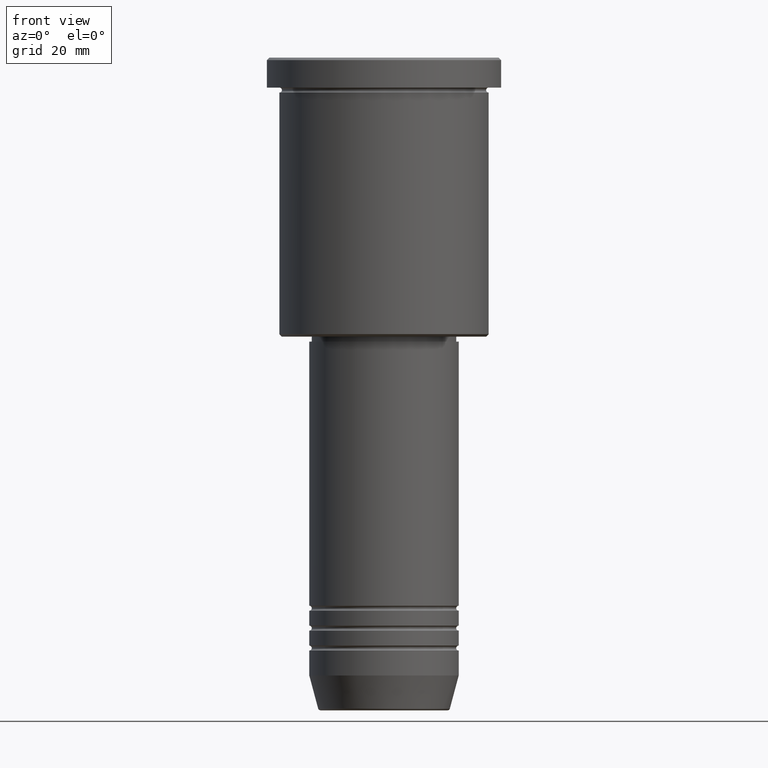
[diagram: clean part render]
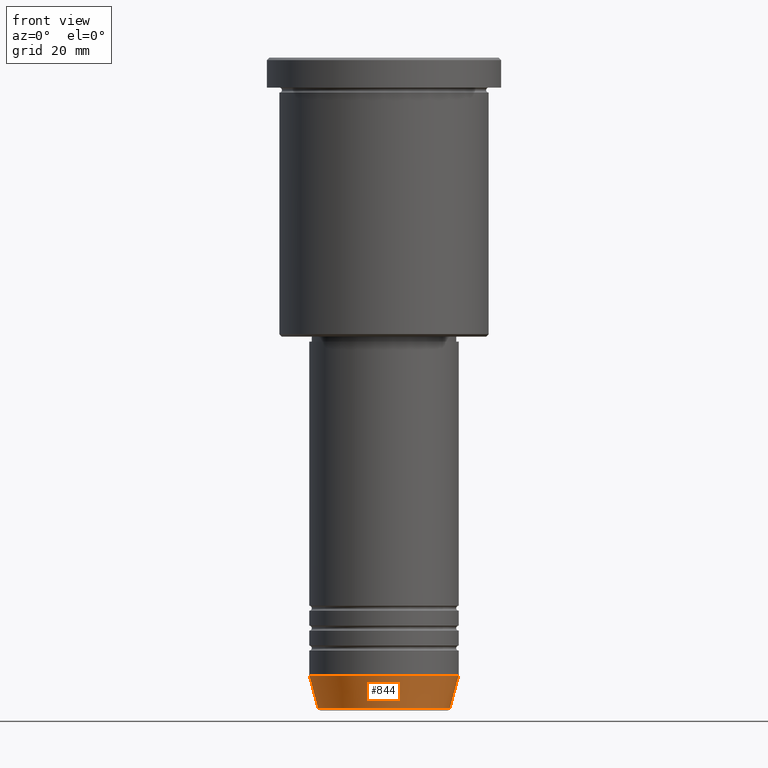
[diagram: same view with one face highlighted and labeled with its STEP entity id]
A machine part, front view. The second image highlights one B-rep face of the part: STEP entity #844.
In plain terms, the highlighted conical surface has half-angle 15 deg.
Its self-contained STEP definition (entity closure, byte-faithful):
#13 = CIRCLE ( 'NONE', #828, 15.00000000000000000 ) ;
#34 = DIRECTION ( 'NONE',  ( 1.000000000000000000, 0.000000000000000000, 0.000000000000000000 ) ) ;
#85 = CARTESIAN_POINT ( 'NONE',  ( -13.22365507213719305, 1.728200442216588386E-15, -130.6294095225512422 ) ) ;
#98 = ORIENTED_EDGE ( 'NONE', *, *, #520, .F. ) ;
#101 = CARTESIAN_POINT ( 'NONE',  ( 15.00000000000000000, 0.000000000000000000, -124.0000000000000000 ) ) ;
#105 = EDGE_CURVE ( 'NONE', #656, #1084, #1110, .T. ) ;
#108 = VERTEX_POINT ( 'NONE', #739 ) ;
#109 = AXIS2_PLACEMENT_3D ( 'NONE', #510, #938, #34 ) ;
#115 = LINE ( 'NONE', #101, #807 ) ;
#147 = CIRCLE ( 'NONE', #109, 13.22365507213719305 ) ;
#172 = EDGE_CURVE ( 'NONE', #656, #240, #147, .T. ) ;
#240 = VERTEX_POINT ( 'NONE', #416 ) ;
#250 = EDGE_LOOP ( 'NONE', ( #370, #884, #914, #98 ) ) ;
#260 = VECTOR ( 'NONE', #570, 1000.000000000000000 ) ;
#342 = CONICAL_SURFACE ( 'NONE', #583, 15.00000000000000000, 0.2617993877991500740 ) ;
#345 = DIRECTION ( 'NONE',  ( 1.000000000000000000, 0.000000000000000000, 0.000000000000000000 ) ) ;
#370 = ORIENTED_EDGE ( 'NONE', *, *, #105, .F. ) ;
#398 = FACE_OUTER_BOUND ( 'NONE', #250, .T. ) ;
#416 = CARTESIAN_POINT ( 'NONE',  ( 13.22365507213719305, 0.000000000000000000, -130.6294095225512422 ) ) ;
#510 = CARTESIAN_POINT ( 'NONE',  ( 0.000000000000000000, 0.000000000000000000, -130.6294095225512422 ) ) ;
#520 = EDGE_CURVE ( 'NONE', #1084, #108, #13, .T. ) ;
#548 = DIRECTION ( 'NONE',  ( 0.2588190451025213501, 0.000000000000000000, 0.9659258262890680902 ) ) ;
#570 = DIRECTION ( 'NONE',  ( -0.2588190451025213501, 3.169619151431772337E-17, 0.9659258262890680902 ) ) ;
#583 = AXIS2_PLACEMENT_3D ( 'NONE', #681, #762, #951 ) ;
#615 = CARTESIAN_POINT ( 'NONE',  ( 0.000000000000000000, 0.000000000000000000, -124.0000000000000000 ) ) ;
#656 = VERTEX_POINT ( 'NONE', #85 ) ;
#681 = CARTESIAN_POINT ( 'NONE',  ( 0.000000000000000000, 0.000000000000000000, -124.0000000000000000 ) ) ;
#694 = EDGE_CURVE ( 'NONE', #240, #108, #115, .T. ) ;
#730 = CARTESIAN_POINT ( 'NONE',  ( -15.00000000000000000, 1.836970198721029589E-15, -124.0000000000000000 ) ) ;
#739 = CARTESIAN_POINT ( 'NONE',  ( 15.00000000000000000, 0.000000000000000000, -124.0000000000000000 ) ) ;
#762 = DIRECTION ( 'NONE',  ( -0.000000000000000000, -0.000000000000000000, 1.000000000000000000 ) ) ;
#807 = VECTOR ( 'NONE', #548, 1000.000000000000000 ) ;
#828 = AXIS2_PLACEMENT_3D ( 'NONE', #615, #1067, #345 ) ;
#844 = ADVANCED_FACE ( 'NONE', ( #398 ), #342, .T. ) ;
#884 = ORIENTED_EDGE ( 'NONE', *, *, #172, .T. ) ;
#893 = CARTESIAN_POINT ( 'NONE',  ( -15.00000000000000000, 1.836970198721029589E-15, -124.0000000000000000 ) ) ;
#914 = ORIENTED_EDGE ( 'NONE', *, *, #694, .T. ) ;
#938 = DIRECTION ( 'NONE',  ( -0.000000000000000000, -0.000000000000000000, 1.000000000000000000 ) ) ;
#951 = DIRECTION ( 'NONE',  ( 1.000000000000000000, 0.000000000000000000, 0.000000000000000000 ) ) ;
#1067 = DIRECTION ( 'NONE',  ( -0.000000000000000000, -0.000000000000000000, 1.000000000000000000 ) ) ;
#1084 = VERTEX_POINT ( 'NONE', #893 ) ;
#1110 = LINE ( 'NONE', #730, #260 ) ;